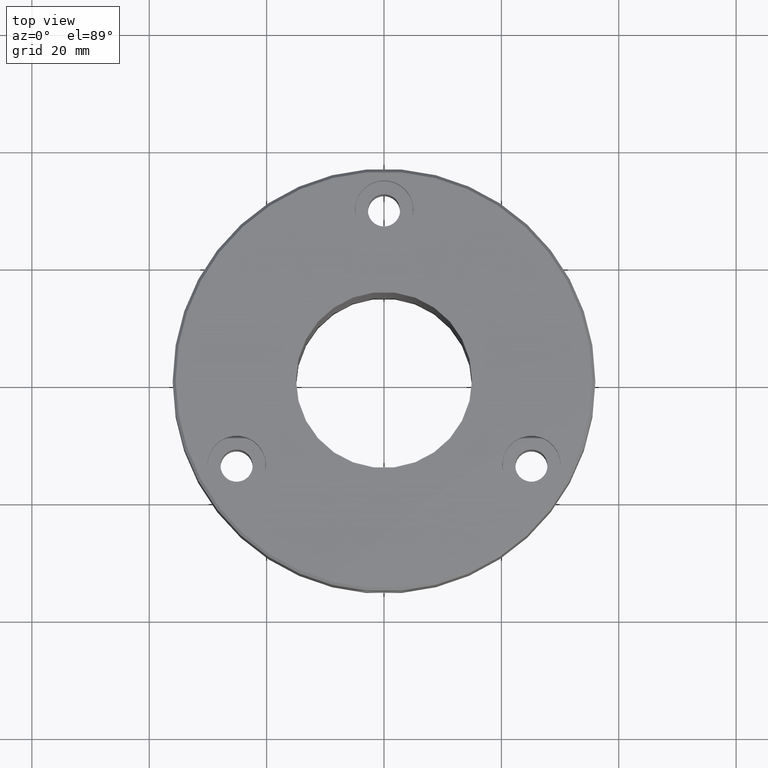
[diagram: clean part render]
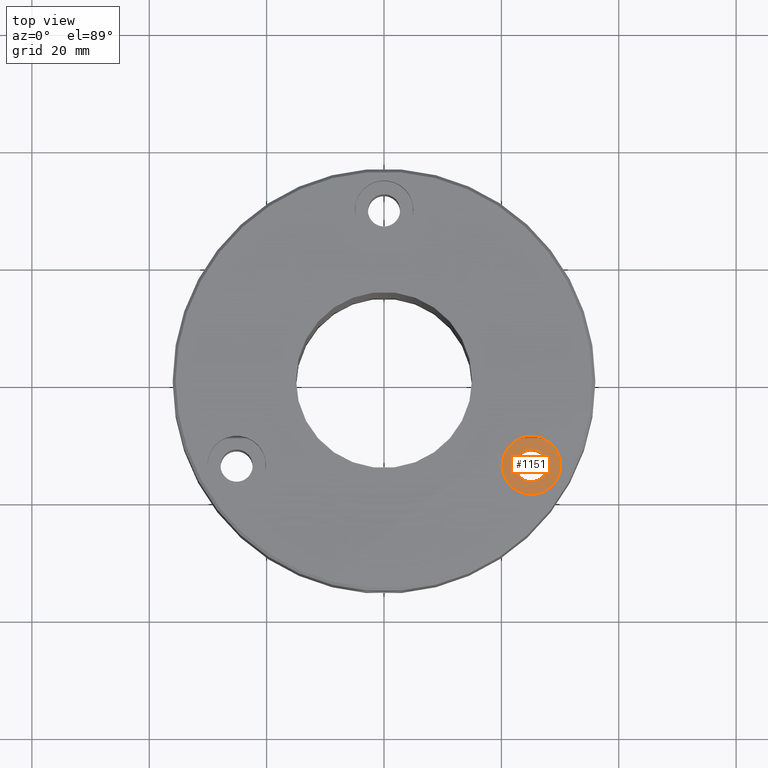
[diagram: same view with one face highlighted and labeled with its STEP entity id]
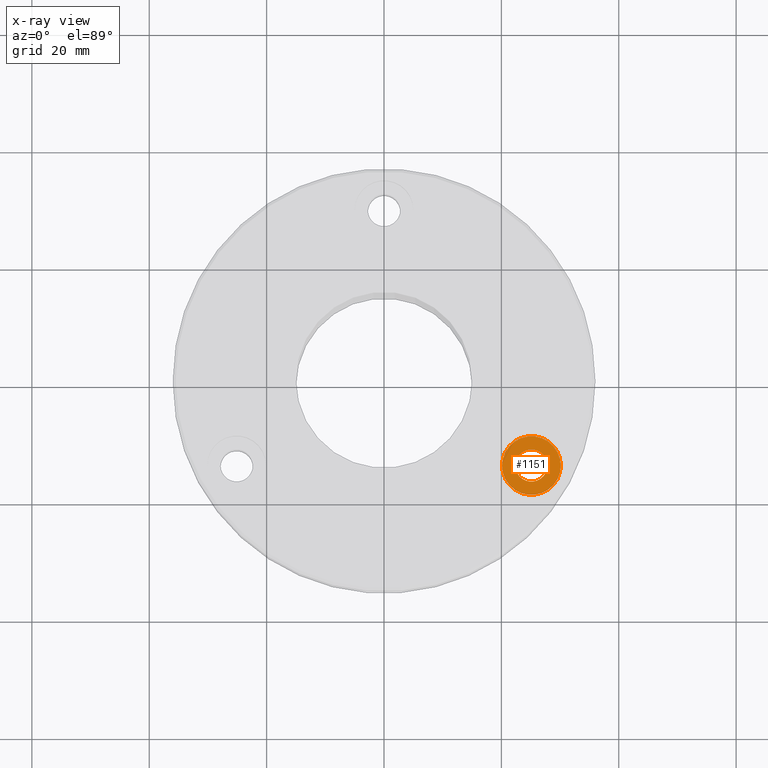
[diagram: x-ray of the same camera — body ghosted, the highlighted face saturated]
A machine part, top view. The second image highlights one B-rep face of the part: STEP entity #1151.
The next image is the same camera in x-ray: the body ghosted, the highlighted face saturated — about 0% of this face is hidden behind the body in this view.
In plain terms, the highlighted planar face has unit normal (0, 0, -1).
Its self-contained STEP definition (entity closure, byte-faithful):
#9 = PLANE ( 'NONE',  #935 ) ;
#18 = DIRECTION ( 'NONE',  ( 1.000000000000000000, 0.000000000000000000, 0.000000000000000000 ) ) ;
#37 = DIRECTION ( 'NONE',  ( -0.000000000000000000, -0.000000000000000000, 1.000000000000000000 ) ) ;
#44 = CARTESIAN_POINT ( 'NONE',  ( 27.86473670974866224, -14.50000000000011013, -5.400000000000000355 ) ) ;
#96 = FACE_OUTER_BOUND ( 'NONE', #727, .T. ) ;
#122 = DIRECTION ( 'NONE',  ( 1.000000000000000000, 0.000000000000000000, 0.000000000000000000 ) ) ;
#123 = AXIS2_PLACEMENT_3D ( 'NONE', #428, #893, #18 ) ;
#132 = CARTESIAN_POINT ( 'NONE',  ( 20.11473670974865513, -14.50000000000011013, -5.400000000000000355 ) ) ;
#134 = ORIENTED_EDGE ( 'NONE', *, *, #366, .F. ) ;
#144 = VERTEX_POINT ( 'NONE', #878 ) ;
#180 = CIRCLE ( 'NONE', #626, 5.000000000000000888 ) ;
#191 = CARTESIAN_POINT ( 'NONE',  ( 22.36473670974865158, -14.50000000000011013, -5.400000000000000355 ) ) ;
#288 = AXIS2_PLACEMENT_3D ( 'NONE', #343, #1230, #337 ) ;
#301 = FACE_BOUND ( 'NONE', #1129, .T. ) ;
#337 = DIRECTION ( 'NONE',  ( 1.000000000000000000, 0.000000000000000000, 0.000000000000000000 ) ) ;
#343 = CARTESIAN_POINT ( 'NONE',  ( 25.11473670974865868, -14.50000000000011013, -5.400000000000000355 ) ) ;
#366 = EDGE_CURVE ( 'NONE', #658, #928, #1008, .T. ) ;
#373 = EDGE_CURVE ( 'NONE', #800, #144, #1228, .T. ) ;
#428 = CARTESIAN_POINT ( 'NONE',  ( 25.11473670974865868, -14.50000000000011013, -5.400000000000000355 ) ) ;
#626 = AXIS2_PLACEMENT_3D ( 'NONE', #773, #37, #997 ) ;
#658 = VERTEX_POINT ( 'NONE', #191 ) ;
#693 = CARTESIAN_POINT ( 'NONE',  ( 27.86473670974866224, -14.50000000000011013, -5.400000000000000355 ) ) ;
#727 = EDGE_LOOP ( 'NONE', ( #821, #1166 ) ) ;
#773 = CARTESIAN_POINT ( 'NONE',  ( 25.11473670974865868, -14.50000000000011013, -5.400000000000000355 ) ) ;
#800 = VERTEX_POINT ( 'NONE', #132 ) ;
#803 = DIRECTION ( 'NONE',  ( -1.000000000000000000, 0.000000000000000000, -0.000000000000000000 ) ) ;
#821 = ORIENTED_EDGE ( 'NONE', *, *, #887, .T. ) ;
#829 = DIRECTION ( 'NONE',  ( -0.000000000000000000, -0.000000000000000000, 1.000000000000000000 ) ) ;
#878 = CARTESIAN_POINT ( 'NONE',  ( 30.11473670974865868, -14.50000000000011013, -5.400000000000000355 ) ) ;
#887 = EDGE_CURVE ( 'NONE', #144, #800, #180, .T. ) ;
#893 = DIRECTION ( 'NONE',  ( -0.000000000000000000, -0.000000000000000000, 1.000000000000000000 ) ) ;
#928 = VERTEX_POINT ( 'NONE', #44 ) ;
#935 = AXIS2_PLACEMENT_3D ( 'NONE', #693, #1251, #803 ) ;
#941 = EDGE_CURVE ( 'NONE', #928, #658, #1065, .T. ) ;
#997 = DIRECTION ( 'NONE',  ( 1.000000000000000000, 0.000000000000000000, 0.000000000000000000 ) ) ;
#1006 = CARTESIAN_POINT ( 'NONE',  ( 25.11473670974865868, -14.50000000000011013, -5.400000000000000355 ) ) ;
#1008 = CIRCLE ( 'NONE', #1064, 2.750000000000005773 ) ;
#1064 = AXIS2_PLACEMENT_3D ( 'NONE', #1006, #829, #122 ) ;
#1065 = CIRCLE ( 'NONE', #123, 2.750000000000005773 ) ;
#1129 = EDGE_LOOP ( 'NONE', ( #1195, #134 ) ) ;
#1151 = ADVANCED_FACE ( 'NONE', ( #301, #96 ), #9, .F. ) ;
#1166 = ORIENTED_EDGE ( 'NONE', *, *, #373, .T. ) ;
#1195 = ORIENTED_EDGE ( 'NONE', *, *, #941, .F. ) ;
#1228 = CIRCLE ( 'NONE', #288, 5.000000000000000888 ) ;
#1230 = DIRECTION ( 'NONE',  ( -0.000000000000000000, -0.000000000000000000, 1.000000000000000000 ) ) ;
#1251 = DIRECTION ( 'NONE',  ( 0.000000000000000000, 0.000000000000000000, -1.000000000000000000 ) ) ;